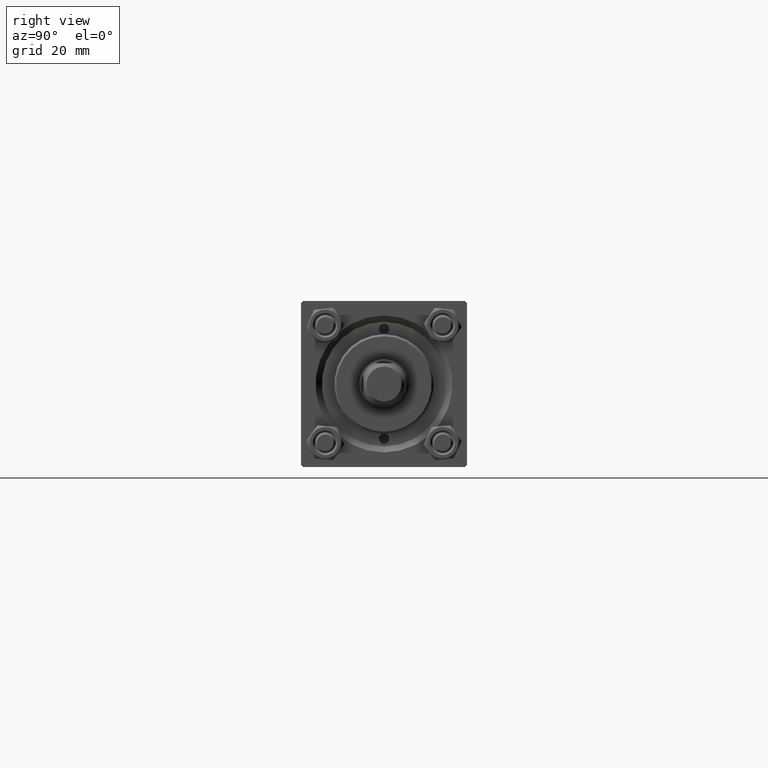
[diagram: clean part render]
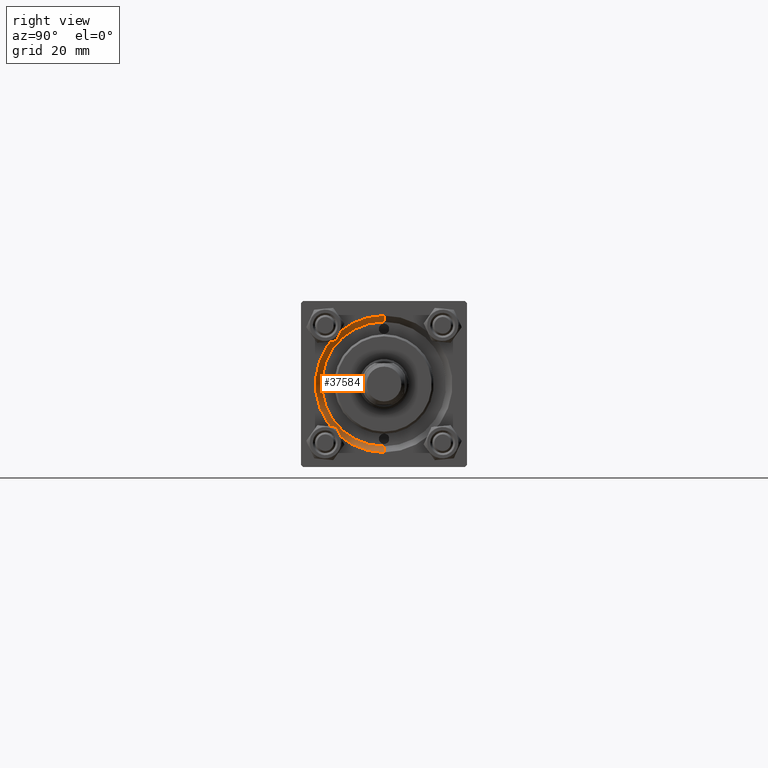
[diagram: same view with one face highlighted and labeled with its STEP entity id]
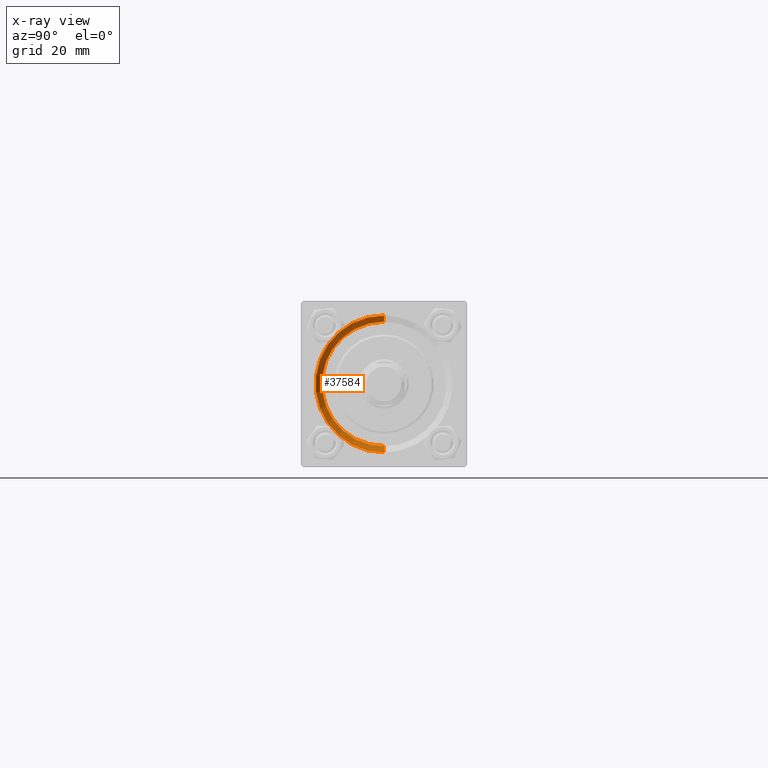
[diagram: x-ray of the same camera — body ghosted, the highlighted face saturated]
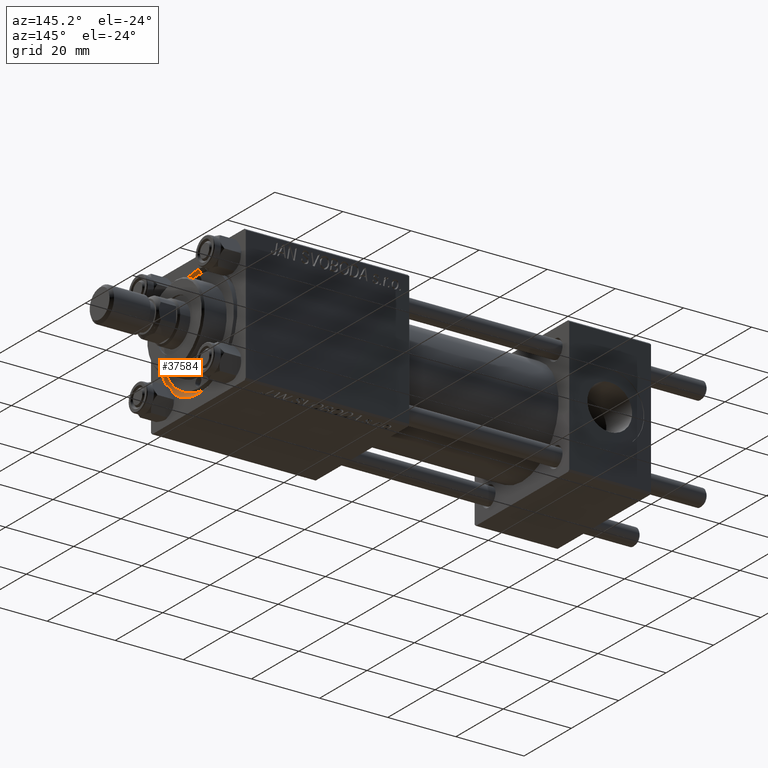
[diagram: same view with one face highlighted and labeled with its STEP entity id]
A machine part, right view. The second image highlights one B-rep face of the part: STEP entity #37584.
The next image is the same camera in x-ray: the body ghosted, the highlighted face saturated — about 0% of this face is hidden behind the body in this view.
A second angle (auxiliary view) of the same face is appended — the face is thin or edge-on in the first view.
In plain terms, the highlighted conical surface has half-angle 45 deg.
Its self-contained STEP definition (entity closure, byte-faithful):
#503 = EDGE_LOOP ( 'NONE', ( #9244, #14840, #28163, #13511 ) ) ;
#2109 = CIRCLE ( 'NONE', #30630, 15.00000000000000000 ) ;
#6566 = CARTESIAN_POINT ( 'NONE',  ( 119.0000000000000142, 2.020667218593134678E-15, 16.50000000000001421 ) ) ;
#7585 = DIRECTION ( 'NONE',  ( 1.000000000000000000, 0.000000000000000000, 0.000000000000000000 ) ) ;
#8275 = CARTESIAN_POINT ( 'NONE',  ( 117.5000000000000000, 0.000000000000000000, -15.00000000000000000 ) ) ;
#9244 = ORIENTED_EDGE ( 'NONE', *, *, #41760, .F. ) ;
#10611 = VERTEX_POINT ( 'NONE', #28882 ) ;
#10908 = VECTOR ( 'NONE', #23826, 1000.000000000000114 ) ;
#13511 = ORIENTED_EDGE ( 'NONE', *, *, #33622, .F. ) ;
#13952 = LINE ( 'NONE', #45023, #25539 ) ;
#14840 = ORIENTED_EDGE ( 'NONE', *, *, #49991, .T. ) ;
#15866 = CARTESIAN_POINT ( 'NONE',  ( 117.5000000000000000, 0.000000000000000000, 0.000000000000000000 ) ) ;
#15953 = AXIS2_PLACEMENT_3D ( 'NONE', #38152, #7585, #34581 ) ;
#16693 = VERTEX_POINT ( 'NONE', #6566 ) ;
#18376 = DIRECTION ( 'NONE',  ( -1.000000000000000000, -0.000000000000000000, -0.000000000000000000 ) ) ;
#22214 = DIRECTION ( 'NONE',  ( 0.000000000000000000, 0.000000000000000000, 1.000000000000000000 ) ) ;
#22639 = FACE_OUTER_BOUND ( 'NONE', #503, .T. ) ;
#23826 = DIRECTION ( 'NONE',  ( 0.7071067811865474617, 0.000000000000000000, -0.7071067811865474617 ) ) ;
#24251 = CARTESIAN_POINT ( 'NONE',  ( 119.0000000000000142, 0.000000000000000000, -16.50000000000001421 ) ) ;
#25539 = VECTOR ( 'NONE', #41209, 1000.000000000000114 ) ;
#25783 = CARTESIAN_POINT ( 'NONE',  ( 119.0000000000000142, 0.000000000000000000, 0.000000000000000000 ) ) ;
#27598 = DIRECTION ( 'NONE',  ( 0.000000000000000000, 0.000000000000000000, 1.000000000000000000 ) ) ;
#28163 = ORIENTED_EDGE ( 'NONE', *, *, #40410, .F. ) ;
#28882 = CARTESIAN_POINT ( 'NONE',  ( 117.5000000000000000, 1.836970198721029589E-15, 15.00000000000000000 ) ) ;
#29048 = CIRCLE ( 'NONE', #47729, 16.50000000000001421 ) ;
#30630 = AXIS2_PLACEMENT_3D ( 'NONE', #15866, #31168, #27598 ) ;
#31168 = DIRECTION ( 'NONE',  ( 1.000000000000000000, 0.000000000000000000, 0.000000000000000000 ) ) ;
#31773 = VERTEX_POINT ( 'NONE', #24251 ) ;
#33622 = EDGE_CURVE ( 'NONE', #35494, #31773, #43169, .T. ) ;
#34581 = DIRECTION ( 'NONE',  ( 0.000000000000000000, 0.000000000000000000, -1.000000000000000000 ) ) ;
#35494 = VERTEX_POINT ( 'NONE', #36054 ) ;
#36054 = CARTESIAN_POINT ( 'NONE',  ( 117.5000000000000000, 0.000000000000000000, -15.00000000000000000 ) ) ;
#37584 = ADVANCED_FACE ( 'NONE', ( #22639 ), #50112, .F. ) ;
#38152 = CARTESIAN_POINT ( 'NONE',  ( 117.5000000000000000, 0.000000000000000000, 0.000000000000000000 ) ) ;
#40410 = EDGE_CURVE ( 'NONE', #31773, #16693, #29048, .T. ) ;
#41209 = DIRECTION ( 'NONE',  ( 0.7071067811865474617, 8.659560562354932858E-17, 0.7071067811865474617 ) ) ;
#41760 = EDGE_CURVE ( 'NONE', #10611, #35494, #2109, .T. ) ;
#43169 = LINE ( 'NONE', #8275, #10908 ) ;
#45023 = CARTESIAN_POINT ( 'NONE',  ( 117.5000000000000000, 1.836970198721029589E-15, 15.00000000000000000 ) ) ;
#47729 = AXIS2_PLACEMENT_3D ( 'NONE', #25783, #18376, #22214 ) ;
#49991 = EDGE_CURVE ( 'NONE', #10611, #16693, #13952, .T. ) ;
#50112 = CONICAL_SURFACE ( 'NONE', #15953, 15.00000000000000000, 0.7853981633974482790 ) ;